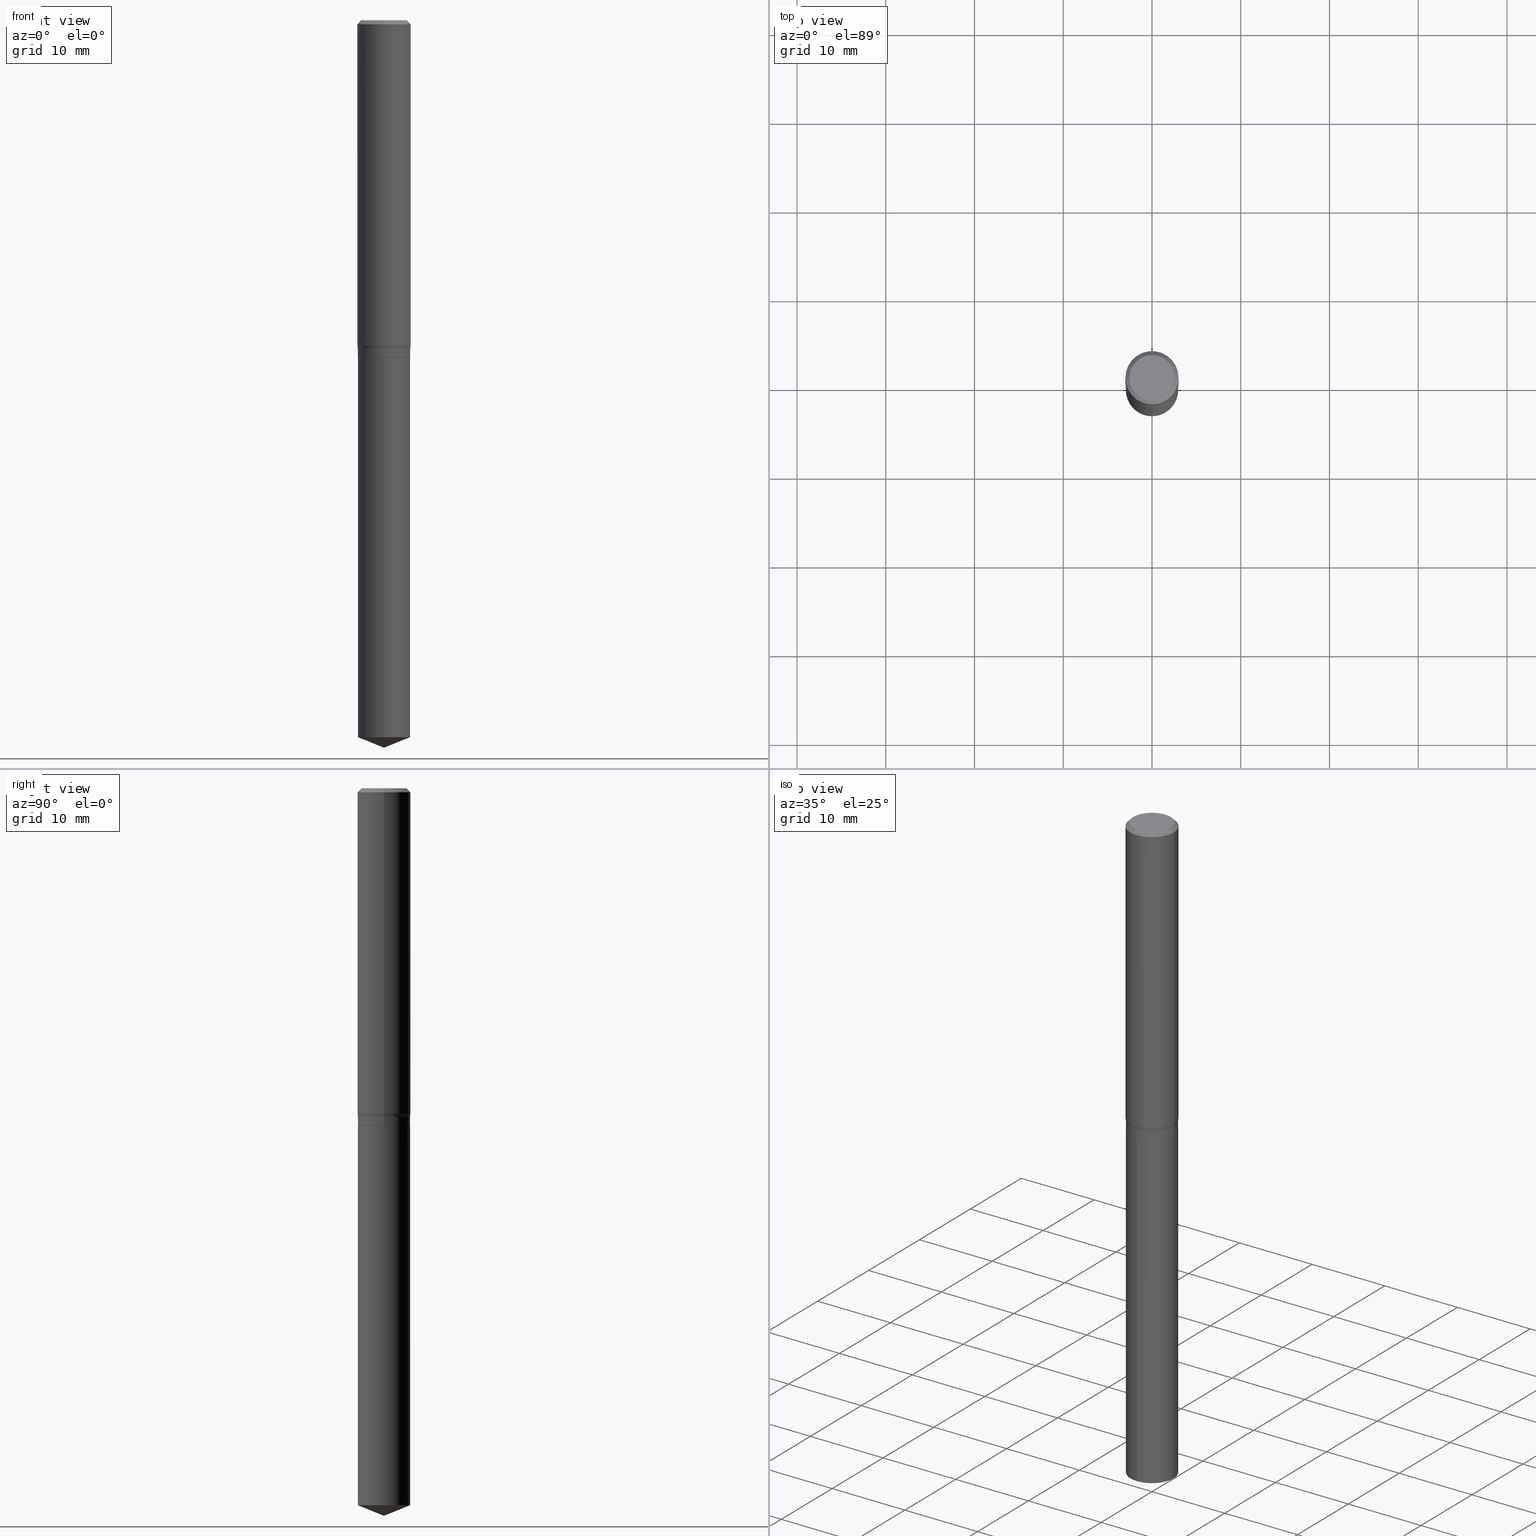
[diagram: canonical four-view strip — front | top / right | iso, engineering-drawing reading convention]
A machine part, canonical four-view strip (front | top / right | iso — engineering-drawing reading convention). The complete STEP part file that produces these views, byte-faithful:
ISO-10303-21;
HEADER;
FILE_DESCRIPTION (( 'STEP AP203' ),
    '1' );
FILE_NAME ('69252.STEP',
    '2024-04-19T17:31:47',
    ( '' ),
    ( '' ),
    'SwSTEP 2.0',
    'SolidWorks 2023',
    '' );
FILE_SCHEMA (( 'CONFIG_CONTROL_DESIGN' ));
ENDSEC;

DATA;
#1 = ADVANCED_FACE ( 'NONE', ( #8 ), #463, .T. ) ;
#2 = FACE_OUTER_BOUND ( 'NONE', #115, .T. ) ;
#3 = DIRECTION ( 'NONE',  ( -2.445468806185136877E-29, 3.491481338843145188E-15, 1.000000000000000000 ) ) ;
#4 = ORIENTED_EDGE ( 'NONE', *, *, #480, .T. ) ;
#5 = DIRECTION ( 'NONE',  ( 1.000000000000000000, -6.982962677686266711E-15, 4.875668750515085695E-29 ) ) ;
#6 = AXIS2_PLACEMENT_3D ( 'NONE', #385, #87, #178 ) ;
#7 = DATE_AND_TIME ( #415, #254 ) ;
#8 = FACE_OUTER_BOUND ( 'NONE', #291, .T. ) ;
#9 = CARTESIAN_POINT ( 'NONE',  ( 2.505516853152066359E-46, -3.577214035530481610E-32, -1.024554820251665005E-17 ) ) ;
#10 = EDGE_CURVE ( 'NONE', #384, #407, #182, .T. ) ;
#11 = EDGE_LOOP ( 'NONE', ( #313, #304 ) ) ;
#12 = CARTESIAN_POINT ( 'NONE',  ( 0.1161500000000000032, -6.031534012851531488E-15, -1.495200000000000307 ) ) ;
#13 = CC_DESIGN_PERSON_AND_ORGANIZATION_ASSIGNMENT ( #445, #216, ( #226 ) ) ;
#14 = APPROVAL_STATUS ( 'not_yet_approved' ) ;
#15 = VERTEX_POINT ( 'NONE', #93 ) ;
#16 = PLANE ( 'NONE',  #294 ) ;
#17 = VERTEX_POINT ( 'NONE', #460 ) ;
#18 = ORIENTED_EDGE ( 'NONE', *, *, #205, .T. ) ;
#19 = VECTOR ( 'NONE', #210, 39.37007874015748143 ) ;
#20 = DIRECTION ( 'NONE',  ( -2.445463019248761215E-29, 3.491489626065407071E-15, 1.000000000000000000 ) ) ;
#21 = EDGE_LOOP ( 'NONE', ( #443, #211, #58, #53 ) ) ;
#22 = APPROVAL_STATUS ( 'not_yet_approved' ) ;
#23 = APPROVAL_ROLE ( '' ) ;
#24 = ADVANCED_FACE ( 'NONE', ( #190 ), #477, .F. ) ;
#25 = CIRCLE ( 'NONE', #471, 0.1161500000000000032 ) ;
#26 = FACE_OUTER_BOUND ( 'NONE', #431, .T. ) ;
#27 = EDGE_CURVE ( 'NONE', #285, #310, #81, .T. ) ;
#28 = DIRECTION ( 'NONE',  ( 1.000000000000000000, -6.982962677686265922E-15, 4.876176775795935793E-29 ) ) ;
#29 = EDGE_LOOP ( 'NONE', ( #163, #321, #436, #209 ) ) ;
#30 = ADVANCED_FACE ( 'NONE', ( #303 ), #486, .T. ) ;
#31 = PERSON_AND_ORGANIZATION ( #136, #146 ) ;
#32 = CIRCLE ( 'NONE', #99, 0.07799999999999995826 ) ;
#33 = DIRECTION ( 'NONE',  ( 1.000000000000000000, -6.982962677686265922E-15, 4.876176775795935793E-29 ) ) ;
#34 = VECTOR ( 'NONE', #38, 39.37007874015748143 ) ;
#35 = LOCAL_TIME ( 13, 31, 47.00000000000000000, #252 ) ;
#36 = DIRECTION ( 'NONE',  ( -2.445463019248761215E-29, 3.491489626065407071E-15, 1.000000000000000000 ) ) ;
#37 = FACE_OUTER_BOUND ( 'NONE', #107, .T. ) ;
#38 = DIRECTION ( 'NONE',  ( 0.7071067811866199593, -2.468850131083015945E-15, 0.7071067811864750752 ) ) ;
#39 = ORIENTED_EDGE ( 'NONE', *, *, #52, .T. ) ;
#40 = DIRECTION ( 'NONE',  ( 1.000000000000000000, -6.982962677686261977E-15, 0.000000000000000000 ) ) ;
#41 = LINE ( 'NONE', #328, #265 ) ;
#42 = FACE_OUTER_BOUND ( 'NONE', #275, .T. ) ;
#43 =( CONVERSION_BASED_UNIT ( 'INCH', #481 ) LENGTH_UNIT ( ) NAMED_UNIT ( #225 ) );
#44 = DIRECTION ( 'NONE',  ( 6.588037525764792868E-15, 0.9271838545667893117, 0.3746065934159070188 ) ) ;
#45 = DIRECTION ( 'NONE',  ( -2.445468806185136877E-29, 3.491481338843145188E-15, 1.000000000000000000 ) ) ;
#46 = CYLINDRICAL_SURFACE ( 'NONE', #379, 0.1181000000000001077 ) ;
#47 = CYLINDRICAL_SURFACE ( 'NONE', #478, 0.1161500000000000032 ) ;
#48 = VERTEX_POINT ( 'NONE', #256 ) ;
#49 = CARTESIAN_POINT ( 'NONE',  ( 3.572585378955866653E-29, -5.100705087915951864E-15, -1.460900000000000309 ) ) ;
#50 = EDGE_CURVE ( 'NONE', #227, #243, #133, .T. ) ;
#51 = DIRECTION ( 'NONE',  ( -2.445468806185136597E-29, 3.491481338843145583E-15, 1.000000000000000000 ) ) ;
#52 = EDGE_CURVE ( 'NONE', #310, #102, #487, .T. ) ;
#53 = ORIENTED_EDGE ( 'NONE', *, *, #398, .T. ) ;
#54 = CIRCLE ( 'NONE', #293, 0.1161500000000000032 ) ;
#55 = PERSON_AND_ORGANIZATION ( #136, #146 ) ;
#56 = DIRECTION ( 'NONE',  ( -2.445468806185136597E-29, 3.491481338843145583E-15, 1.000000000000000000 ) ) ;
#57 = ORIENTED_EDGE ( 'NONE', *, *, #331, .T. ) ;
#58 = ORIENTED_EDGE ( 'NONE', *, *, #231, .T. ) ;
#59 = AXIS2_PLACEMENT_3D ( 'NONE', #258, #264, #295 ) ;
#60 = AXIS2_PLACEMENT_3D ( 'NONE', #402, #68, #28 ) ;
#61 = CC_DESIGN_PERSON_AND_ORGANIZATION_ASSIGNMENT ( #31, #289, ( #440 ) ) ;
#62 = ORIENTED_EDGE ( 'NONE', *, *, #287, .T. ) ;
#63 = VERTEX_POINT ( 'NONE', #424 ) ;
#64 = CARTESIAN_POINT ( 'NONE',  ( -0.1180999999999999966, 7.628363003171413738E-16, -0.01771500000000010913 ) ) ;
#65 = ORIENTED_EDGE ( 'NONE', *, *, #110, .T. ) ;
#66 = CLOSED_SHELL ( 'NONE', ( #235, #140, #447, #1, #273 ) ) ;
#67 = AXIS2_PLACEMENT_3D ( 'NONE', #114, #290, #476 ) ;
#68 = DIRECTION ( 'NONE',  ( -2.438088387897960049E-29, 3.491481338843145188E-15, 1.000000000000000000 ) ) ;
#69 = EDGE_CURVE ( 'NONE', #63, #399, #54, .T. ) ;
#70 = DIRECTION ( 'NONE',  ( 1.000000000000000000, -6.982962677686269866E-15, 0.000000000000000000 ) ) ;
#71 = ADVANCED_BREP_SHAPE_REPRESENTATION ( '69252', ( #400, #241, #234 ), #389 ) ;
#72 = DATE_AND_TIME ( #444, #35 ) ;
#73 = CYLINDRICAL_SURFACE ( 'NONE', #433, 0.1161500000000000032 ) ;
#74 = ORIENTED_EDGE ( 'NONE', *, *, #398, .F. ) ;
#75 = CALENDAR_DATE ( 2024, 19, 4 ) ;
#76 = CIRCLE ( 'NONE', #166, 0.1161500000000000032 ) ;
#77 = CONICAL_SURFACE ( 'NONE', #195, 97.44436430772871915, 1.186823891356145966 ) ;
#78 = ORIENTED_EDGE ( 'NONE', *, *, #27, .F. ) ;
#79 = ORIENTED_EDGE ( 'NONE', *, *, #269, .F. ) ;
#80 = DIRECTION ( 'NONE',  ( -6.982962677686265922E-15, -1.000000000000000000, 4.703999989090422785E-15 ) ) ;
#81 = LINE ( 'NONE', #383, #451 ) ;
#82 = FACE_OUTER_BOUND ( 'NONE', #98, .T. ) ;
#83 = APPROVAL_DATE_TIME ( #7, #103 ) ;
#84 = DIRECTION ( 'NONE',  ( -2.445468806185136597E-29, 3.491481338843145583E-15, 1.000000000000000000 ) ) ;
#85 = ORIENTED_EDGE ( 'NONE', *, *, #50, .T. ) ;
#86 = EDGE_CURVE ( 'NONE', #310, #227, #462, .T. ) ;
#88 = DIRECTION ( 'NONE',  ( 7.105427357601001859E-15, 1.000000000000000000, -3.491481338843145583E-15 ) ) ;
#87 = DIRECTION ( 'NONE',  ( -2.445468806185136597E-29, 3.491481338843145583E-15, 1.000000000000000000 ) ) ;
#89 = ORIENTED_EDGE ( 'NONE', *, *, #10, .T. ) ;
#90 = CIRCLE ( 'NONE', #129, 0.1180999999999999966 ) ;
#91 = LINE ( 'NONE', #232, #34 ) ;
#92 = APPROVAL_PERSON_ORGANIZATION ( #55, #116, #161 ) ;
#93 = CARTESIAN_POINT ( 'NONE',  ( -0.1003850000000000159, 7.319105043583386689E-16, -2.049109640503831060E-17 ) ) ;
#94 = ORIENTED_EDGE ( 'NONE', *, *, #261, .T. ) ;
#95 = EDGE_CURVE ( 'NONE', #384, #153, #127, .T. ) ;
#96 = DIRECTION ( 'NONE',  ( 1.000000000000000000, -6.982962677686269866E-15, 0.000000000000000000 ) ) ;
#97 = COORDINATED_UNIVERSAL_TIME_OFFSET ( 5, 0, .BEHIND. ) ;
#98 = EDGE_LOOP ( 'NONE', ( #299, #199, #378 ) ) ;
#99 = AXIS2_PLACEMENT_3D ( 'NONE', #458, #414, #40 ) ;
#100 = ORIENTED_EDGE ( 'NONE', *, *, #122, .T. ) ;
#101 = FACE_OUTER_BOUND ( 'NONE', #167, .T. ) ;
#102 = VERTEX_POINT ( 'NONE', #12 ) ;
#103 = APPROVAL ( #453, 'UNSPECIFIED' ) ;
#104 = COORDINATED_UNIVERSAL_TIME_OFFSET ( 5, 0, .BEHIND. ) ;
#105 = EDGE_LOOP ( 'NONE', ( #390, #197, #85, #388 ) ) ;
#106 = CIRCLE ( 'NONE', #359, 0.1156500000000000028 ) ;
#107 = EDGE_LOOP ( 'NONE', ( #316, #132 ) ) ;
#108 = AXIS2_PLACEMENT_3D ( 'NONE', #244, #118, #372 ) ;
#109 = EDGE_CURVE ( 'NONE', #102, #243, #160, .T. ) ;
#110 = EDGE_CURVE ( 'NONE', #153, #243, #32, .T. ) ;
#111 = AXIS2_PLACEMENT_3D ( 'NONE', #403, #145, #449 ) ;
#112 = CARTESIAN_POINT ( 'NONE',  ( 0.000000000000000000, 0.000000000000000000, 0.000000000000000000 ) ) ;
#113 = ORIENTED_EDGE ( 'NONE', *, *, #288, .T. ) ;
#114 = CARTESIAN_POINT ( 'NONE',  ( 4.332147990156995868E-31, -6.185159191760670395E-17, -0.01771500000000010913 ) ) ;
#115 = EDGE_LOOP ( 'NONE', ( #343, #192, #113, #74 ) ) ;
#116 = APPROVAL ( #14, 'UNSPECIFIED' ) ;
#117 = CARTESIAN_POINT ( 'NONE',  ( 0.000000000000000000, 0.000000000000000000, 0.000000000000000000 ) ) ;
#118 = DIRECTION ( 'NONE',  ( -2.445463019248761215E-29, 3.491489626065407071E-15, 1.000000000000000000 ) ) ;
#119 = CARTESIAN_POINT ( 'NONE',  ( 4.332147990156995868E-31, -6.185159191760670395E-17, -0.01771500000000010913 ) ) ;
#120 = MECHANICAL_CONTEXT ( 'NONE', #355, 'mechanical' ) ;
#121 = CARTESIAN_POINT ( 'NONE',  ( 7.893954626135001051E-29, -1.127052851293913482E-14, -3.228000000000000203 ) ) ;
#122 = EDGE_CURVE ( 'NONE', #285, #365, #106, .T. ) ;
#123 = FACE_OUTER_BOUND ( 'NONE', #419, .T. ) ;
#124 = CARTESIAN_POINT ( 'NONE',  ( -0.1941499999999999615, -3.721186366437717824E-15, -1.460900000000000309 ) ) ;
#125 = EDGE_CURVE ( 'NONE', #48, #352, #148, .T. ) ;
#126 = DIRECTION ( 'NONE',  ( 1.000000000000000000, -6.982962677686266711E-15, 4.876176775795935793E-29 ) ) ;
#127 = CIRCLE ( 'NONE', #395, 0.1181000000000001909 ) ;
#128 = AXIS2_PLACEMENT_3D ( 'NONE', #219, #377, #126 ) ;
#129 = AXIS2_PLACEMENT_3D ( 'NONE', #349, #155, #200 ) ;
#130 = CC_DESIGN_APPROVAL ( #116, ( #226 ) ) ;
#131 = CARTESIAN_POINT ( 'NONE',  ( 7.779203458462590144E-29, -1.110666872809960382E-14, -3.181072353869246694 ) ) ;
#132 = ORIENTED_EDGE ( 'NONE', *, *, #269, .T. ) ;
#133 = CIRCLE ( 'NONE', #263, 0.1161500000000000032 ) ;
#134 = CIRCLE ( 'NONE', #108, 0.1161500000000000032 ) ;
#135 = EDGE_CURVE ( 'NONE', #384, #227, #438, .T. ) ;
#136 = PERSON ( 'UNSPECIFIED', 'UNSPECIFIED', 'UNSPECIFIED', ('UNSPECIFIED'), ('UNSPECIFIED'), ('UNSPECIFIED') ) ;
#137 = EDGE_LOOP ( 'NONE', ( #435, #57, #324 ) ) ;
#138 = AXIS2_PLACEMENT_3D ( 'NONE', #124, #88, #350 ) ;
#139 = CALENDAR_DATE ( 2024, 19, 4 ) ;
#140 = ADVANCED_FACE ( 'NONE', ( #82 ), #410, .T. ) ;
#141 = FACE_OUTER_BOUND ( 'NONE', #29, .T. ) ;
#142 = CIRCLE ( 'NONE', #370, 0.1156500000000000028 ) ;
#143 = APPLICATION_PROTOCOL_DEFINITION ( 'international standard', 'config_control_design', 1994, #355 ) ;
#144 = DIRECTION ( 'NONE',  ( -6.982962677686265922E-15, -1.000000000000000000, 2.351999994545211393E-15 ) ) ;
#145 = DIRECTION ( 'NONE',  ( 2.445463019248760935E-29, -3.491489626065407071E-15, -1.000000000000000000 ) ) ;
#146 = ORGANIZATION ( 'UNSPECIFIED', 'UNSPECIFIED', '' ) ;
#147 = DIRECTION ( 'NONE',  ( -2.445468806185136597E-29, 3.491481338843145583E-15, 1.000000000000000000 ) ) ;
#148 = LINE ( 'NONE', #418, #369 ) ;
#149 = DIRECTION ( 'NONE',  ( -2.445468806185136597E-29, 3.491481338843145583E-15, 1.000000000000000000 ) ) ;
#150 = EDGE_CURVE ( 'NONE', #243, #227, #76, .T. ) ;
#151 = DIRECTION ( 'NONE',  ( 1.000000000000000000, -6.982962677686265922E-15, 0.000000000000000000 ) ) ;
#152 = DIRECTION ( 'NONE',  ( 1.000000000000000000, -6.982962677686267499E-15, 4.883557194083113462E-29 ) ) ;
#153 = VERTEX_POINT ( 'NONE', #336 ) ;
#154 = DIRECTION ( 'NONE',  ( 1.000000000000000000, -6.982962677686269866E-15, 0.000000000000000000 ) ) ;
#155 = DIRECTION ( 'NONE',  ( -2.445468806185136597E-29, 3.491481338843145583E-15, 1.000000000000000000 ) ) ;
#156 = DIRECTION ( 'NONE',  ( 1.000000000000000000, -6.982962677686265922E-15, 0.000000000000000000 ) ) ;
#157 = CIRCLE ( 'NONE', #322, 0.1180999999999999966 ) ;
#158 = DIRECTION ( 'NONE',  ( 0.000000000000000000, 0.000000000000000000, 1.000000000000000000 ) ) ;
#159 = CARTESIAN_POINT ( 'NONE',  ( 3.657687693411109493E-29, -5.222208638507693246E-15, -1.495700000000000029 ) ) ;
#160 = LINE ( 'NONE', #450, #176 ) ;
#161 = APPROVAL_ROLE ( '' ) ;
#162 = ORIENTED_EDGE ( 'NONE', *, *, #446, .F. ) ;
#163 = ORIENTED_EDGE ( 'NONE', *, *, #308, .T. ) ;
#164 = CARTESIAN_POINT ( 'NONE',  ( 3.572585378955866653E-29, -5.100705087915951864E-15, -1.460900000000000309 ) ) ;
#165 = APPROVAL ( #22, 'UNSPECIFIED' ) ;
#166 = AXIS2_PLACEMENT_3D ( 'NONE', #298, #456, #341 ) ;
#167 = EDGE_LOOP ( 'NONE', ( #354, #203, #65, #236 ) ) ;
#168 = LOCAL_TIME ( 13, 31, 47.00000000000000000, #97 ) ;
#169 = DIRECTION ( 'NONE',  ( 1.000000000000000000, -6.982962677686269077E-15, 0.000000000000000000 ) ) ;
#170 = CONICAL_SURFACE ( 'NONE', #240, 0.1156500000000000028, 0.7853981633975507526 ) ;
#171 = CARTESIAN_POINT ( 'NONE',  ( 0.1161500000000000032, -5.911776202929211610E-15, -1.460900000000000309 ) ) ;
#172 = PLANE ( 'NONE',  #60 ) ;
#173 = EDGE_LOOP ( 'NONE', ( #78, #100, #490, #218 ) ) ;
#174 = DESIGN_CONTEXT ( 'detailed design', #320, 'design' ) ;
#175 = FACE_OUTER_BOUND ( 'NONE', #11, .T. ) ;
#176 = VECTOR ( 'NONE', #381, 39.37007874015748143 ) ;
#177 = APPLICATION_PROTOCOL_DEFINITION ( 'international standard', 'config_control_design', 1994, #320 ) ;
#178 = DIRECTION ( 'NONE',  ( 1.000000000000000000, -6.982962677686266711E-15, 4.875668750515085695E-29 ) ) ;
#179 = CARTESIAN_POINT ( 'NONE',  ( -0.1161500000000000032, -4.335288605291756006E-15, -1.460900000000000309 ) ) ;
#180 = ADVANCED_FACE ( 'NONE', ( #42 ), #345, .T. ) ;
#181 = DATE_AND_TIME ( #75, #168 ) ;
#182 = LINE ( 'NONE', #386, #284 ) ;
#183 = DIRECTION ( 'NONE',  ( -2.445468806185136597E-29, 3.491481338843145583E-15, 1.000000000000000000 ) ) ;
#184 = UNCERTAINTY_MEASURE_WITH_UNIT (LENGTH_MEASURE( 1.000000000000000082E-05 ), #43, 'distance_accuracy_value', 'NONE');
#185 = CARTESIAN_POINT ( 'NONE',  ( 3.657687693411109493E-29, -5.222208638507693246E-15, -1.495700000000000029 ) ) ;
#186 = TOROIDAL_SURFACE ( 'NONE', #286, 0.1941499999999999615, 0.07799999999999997213 ) ;
#187 = ORIENTED_EDGE ( 'NONE', *, *, #468, .F. ) ;
#188 = CARTESIAN_POINT ( 'NONE',  ( 0.000000000000000000, 0.000000000000000000, 0.000000000000000000 ) ) ;
#189 = CARTESIAN_POINT ( 'NONE',  ( -0.1180999999999999966, -1.711870228163632299E-15, -0.01771500000000010913 ) ) ;
#190 = FACE_OUTER_BOUND ( 'NONE', #105, .T. ) ;
#191 = ADVANCED_FACE ( 'NONE', ( #2 ), #46, .T. ) ;
#192 = ORIENTED_EDGE ( 'NONE', *, *, #95, .T. ) ;
#193 = FACE_OUTER_BOUND ( 'NONE', #425, .T. ) ;
#194 = CARTESIAN_POINT ( 'NONE',  ( 3.530200564683698665E-29, -5.040190806275017950E-15, -1.443568020886233816 ) ) ;
#195 = AXIS2_PLACEMENT_3D ( 'NONE', #279, #20, #206 ) ;
#196 = ORIENTED_EDGE ( 'NONE', *, *, #228, .T. ) ;
#197 = ORIENTED_EDGE ( 'NONE', *, *, #135, .T. ) ;
#198 = FACE_OUTER_BOUND ( 'NONE', #137, .T. ) ;
#199 = ORIENTED_EDGE ( 'NONE', *, *, #340, .T. ) ;
#200 = DIRECTION ( 'NONE',  ( 1.000000000000000000, -6.982962677686266711E-15, 0.000000000000000000 ) ) ;
#201 = ADVANCED_FACE ( 'NONE', ( #193 ), #170, .T. ) ;
#202 = CIRCLE ( 'NONE', #317, 0.1003850000000000159 ) ;
#203 = ORIENTED_EDGE ( 'NONE', *, *, #228, .F. ) ;
#204 = APPROVAL_PERSON_ORGANIZATION ( #233, #103, #387 ) ;
#205 = EDGE_CURVE ( 'NONE', #15, #48, #202, .T. ) ;
#206 = DIRECTION ( 'NONE',  ( -6.982962677686265922E-15, -1.000000000000000000, 3.498761904101816908E-15 ) ) ;
#207 = ORIENTED_EDGE ( 'NONE', *, *, #287, .F. ) ;
#208 = DIRECTION ( 'NONE',  ( -0.7071067811865454633, 2.468850131082235367E-15, -0.7071067811865495711 ) ) ;
#209 = ORIENTED_EDGE ( 'NONE', *, *, #109, .F. ) ;
#210 = DIRECTION ( 'NONE',  ( -2.445463019248761495E-29, 3.491489626065407071E-15, 1.000000000000000000 ) ) ;
#211 = ORIENTED_EDGE ( 'NONE', *, *, #205, .F. ) ;
#212 = CARTESIAN_POINT ( 'NONE',  ( 7.893954626135001051E-29, -1.127052851293913482E-14, -3.228000000000000203 ) ) ;
#213 = DIRECTION ( 'NONE',  ( -6.982962677686265922E-15, -1.000000000000000000, 2.351999994545211393E-15 ) ) ;
#214 = CARTESIAN_POINT ( 'NONE',  ( 3.657687693411109493E-29, -5.222208638507693246E-15, -1.495700000000000029 ) ) ;
#215 = VECTOR ( 'NONE', #44, 39.37007874015748854 ) ;
#216 = PERSON_AND_ORGANIZATION_ROLE ( 'creator' ) ;
#217 = ADVANCED_FACE ( 'NONE', ( #428 ), #353, .T. ) ;
#218 = ORIENTED_EDGE ( 'NONE', *, *, #52, .F. ) ;
#219 = CARTESIAN_POINT ( 'NONE',  ( 0.000000000000000000, 0.000000000000000000, 0.000000000000000000 ) ) ;
#220 = LINE ( 'NONE', #376, #215 ) ;
#221 = CARTESIAN_POINT ( 'NONE',  ( -8.838410834231123198E-28, 1.261897053808972717E-13, 36.14207874015747990 ) ) ;
#222 = EDGE_CURVE ( 'NONE', #365, #102, #91, .T. ) ;
#223 = DIRECTION ( 'NONE',  ( 1.000000000000000000, -6.982962677686269866E-15, 0.000000000000000000 ) ) ;
#224 = CIRCLE ( 'NONE', #6, 0.1003850000000000159 ) ;
#225 = DIMENSIONAL_EXPONENTS ( 1.000000000000000000, 0.000000000000000000, 0.000000000000000000, 0.000000000000000000, 0.000000000000000000, 0.000000000000000000, 0.000000000000000000 ) ;
#226 = PRODUCT_DEFINITION_FORMATION_WITH_SPECIFIED_SOURCE ( 'ANY', '', #440, .NOT_KNOWN. ) ;
#227 = VERTEX_POINT ( 'NONE', #179 ) ;
#228 = EDGE_CURVE ( 'NONE', #153, #384, #247, .T. ) ;
#229 = EDGE_LOOP ( 'NONE', ( #196, #89, #351, #437 ) ) ;
#230 = DIRECTION ( 'NONE',  ( -2.445468806185136597E-29, 3.491481338843145583E-15, 1.000000000000000000 ) ) ;
#231 = EDGE_CURVE ( 'NONE', #15, #407, #470, .T. ) ;
#232 = CARTESIAN_POINT ( 'NONE',  ( 0.1156500000000000028, -6.029788272182109985E-15, -1.495700000000000029 ) ) ;
#233 = PERSON_AND_ORGANIZATION ( #136, #146 ) ;
#234 = AXIS2_PLACEMENT_3D ( 'NONE', #117, #158, #342 ) ;
#235 = ADVANCED_FACE ( 'NONE', ( #26 ), #73, .T. ) ;
#236 = ORIENTED_EDGE ( 'NONE', *, *, #150, .T. ) ;
#237 = DATE_AND_TIME ( #139, #412 ) ;
#238 = ORIENTED_EDGE ( 'NONE', *, *, #86, .F. ) ;
#239 = PERSON_AND_ORGANIZATION ( #136, #146 ) ;
#240 = AXIS2_PLACEMENT_3D ( 'NONE', #491, #149, #154 ) ;
#241 = MANIFOLD_SOLID_BREP ( 'Body-Move/Copy2[2]', #246 ) ;
#242 = ADVANCED_FACE ( 'NONE', ( #368 ), #330, .T. ) ;
#243 = VERTEX_POINT ( 'NONE', #171 ) ;
#244 = CARTESIAN_POINT ( 'NONE',  ( 3.657687693411109493E-29, -5.222208638507693246E-15, -1.495700000000000029 ) ) ;
#245 = ADVANCED_FACE ( 'NONE', ( #141 ), #283, .T. ) ;
#246 = CLOSED_SHELL ( 'NONE', ( #201, #180, #30, #24, #245, #296, #382, #191, #242, #434, #276, #217 ) ) ;
#247 = CIRCLE ( 'NONE', #441, 0.1181000000000001909 ) ;
#248 = ORIENTED_EDGE ( 'NONE', *, *, #125, .T. ) ;
#249 = PERSON_AND_ORGANIZATION_ROLE ( 'creator' ) ;
#250 = LINE ( 'NONE', #406, #19 ) ;
#251 = CC_DESIGN_DATE_AND_TIME_ASSIGNMENT ( #237, #274, ( #272 ) ) ;
#252 = COORDINATED_UNIVERSAL_TIME_OFFSET ( 5, 0, .BEHIND. ) ;
#253 = CIRCLE ( 'NONE', #467, 0.1161500000000000032 ) ;
#254 = LOCAL_TIME ( 13, 31, 47.00000000000000000, #268 ) ;
#255 = PERSON_AND_ORGANIZATION ( #136, #146 ) ;
#256 = CARTESIAN_POINT ( 'NONE',  ( 0.1003850000000000159, -7.803837484803599345E-16, -2.049109640502812012E-17 ) ) ;
#257 = DIRECTION ( 'NONE',  ( 2.445468806185136597E-29, -3.491481338843145583E-15, -1.000000000000000000 ) ) ;
#258 = CARTESIAN_POINT ( 'NONE',  ( 3.656464959008016692E-29, -5.220462897838271742E-15, -1.495200000000000307 ) ) ;
#259 = DIRECTION ( 'NONE',  ( -2.445468806185136597E-29, 3.491481338843145583E-15, 1.000000000000000000 ) ) ;
#260 = DIRECTION ( 'NONE',  ( -1.000000000000000000, 6.982962677686266711E-15, 0.000000000000000000 ) ) ;
#261 = EDGE_CURVE ( 'NONE', #399, #465, #250, .T. ) ;
#262 = CARTESIAN_POINT ( 'NONE',  ( 8.252953875854338945E-16, 0.1161499999999888871, -3.181072353869247582 ) ) ;
#263 = AXIS2_PLACEMENT_3D ( 'NONE', #374, #339, #156 ) ;
#264 = DIRECTION ( 'NONE',  ( -2.445468806185136597E-29, 3.491481338843145583E-15, 1.000000000000000000 ) ) ;
#265 = VECTOR ( 'NONE', #363, 39.37007874015748143 ) ;
#266 = CARTESIAN_POINT ( 'NONE',  ( -0.1161500000000000032, 8.252953875853563889E-16, -5.713343107331073533E-30 ) ) ;
#267 = DIRECTION ( 'NONE',  ( 1.000000000000000000, -6.982962677686266711E-15, 4.876176775795935793E-29 ) ) ;
#268 = COORDINATED_UNIVERSAL_TIME_OFFSET ( 5, 0, .BEHIND. ) ;
#269 = EDGE_CURVE ( 'NONE', #465, #17, #134, .T. ) ;
#270 = DIRECTION ( 'NONE',  ( -2.445463019248761495E-29, 3.491489626065407071E-15, 1.000000000000000000 ) ) ;
#271 = VECTOR ( 'NONE', #208, 39.37007874015748143 ) ;
#272 = SECURITY_CLASSIFICATION ( '', '', #448 ) ;
#273 = ADVANCED_FACE ( 'NONE', ( #37 ), #484, .F. ) ;
#274 = DATE_TIME_ROLE ( 'classification_date' ) ;
#275 = EDGE_LOOP ( 'NONE', ( #207, #248, #393, #401 ) ) ;
#276 = ADVANCED_FACE ( 'NONE', ( #175 ), #172, .F. ) ;
#277 = ORIENTED_EDGE ( 'NONE', *, *, #222, .F. ) ;
#278 = CALENDAR_DATE ( 2024, 19, 4 ) ;
#279 = CARTESIAN_POINT ( 'NONE',  ( -8.838410834231123198E-28, 1.261897053808972717E-13, 36.14207874015747990 ) ) ;
#280 = EDGE_CURVE ( 'NONE', #365, #285, #142, .T. ) ;
#281 = CC_DESIGN_DATE_AND_TIME_ASSIGNMENT ( #181, #405, ( #367 ) ) ;
#282 = DIRECTION ( 'NONE',  ( -2.445468806185136597E-29, 3.491481338843145583E-15, 1.000000000000000000 ) ) ;
#283 = CYLINDRICAL_SURFACE ( 'NONE', #439, 0.1161500000000000032 ) ;
#284 = VECTOR ( 'NONE', #3, 39.37007874015748143 ) ;
#285 = VERTEX_POINT ( 'NONE', #364 ) ;
#286 = AXIS2_PLACEMENT_3D ( 'NONE', #164, #56, #469 ) ;
#287 = EDGE_CURVE ( 'NONE', #48, #15, #224, .T. ) ;
#288 = EDGE_CURVE ( 'NONE', #153, #352, #41, .T. ) ;
#289 = PERSON_AND_ORGANIZATION_ROLE ( 'design_owner' ) ;
#290 = DIRECTION ( 'NONE',  ( 2.445468806185136597E-29, -3.491481338843145583E-15, -1.000000000000000000 ) ) ;
#291 = EDGE_LOOP ( 'NONE', ( #348, #4, #335, #79 ) ) ;
#292 = DIRECTION ( 'NONE',  ( -2.445468806185136597E-29, 3.491481338843145583E-15, 1.000000000000000000 ) ) ;
#293 = AXIS2_PLACEMENT_3D ( 'NONE', #131, #454, #307 ) ;
#294 = AXIS2_PLACEMENT_3D ( 'NONE', #9, #464, #311 ) ;
#295 = DIRECTION ( 'NONE',  ( 1.000000000000000000, -6.982962677686265922E-15, 0.000000000000000000 ) ) ;
#296 = ADVANCED_FACE ( 'NONE', ( #123 ), #47, .T. ) ;
#297 = ORIENTED_EDGE ( 'NONE', *, *, #50, .F. ) ;
#298 = CARTESIAN_POINT ( 'NONE',  ( 3.572585378955866653E-29, -5.100705087915951864E-15, -1.460900000000000309 ) ) ;
#299 = ORIENTED_EDGE ( 'NONE', *, *, #331, .F. ) ;
#300 = DIRECTION ( 'NONE',  ( 1.000000000000000000, -6.982962677686266711E-15, 0.000000000000000000 ) ) ;
#301 = DIRECTION ( 'NONE',  ( 0.7071067811865454633, -7.319954787623248157E-15, -0.7071067811865495711 ) ) ;
#302 = CARTESIAN_POINT ( 'NONE',  ( 5.011033706304132718E-46, -7.154428071060963220E-32, -2.049109640503330010E-17 ) ) ;
#303 = FACE_OUTER_BOUND ( 'NONE', #229, .T. ) ;
#304 = ORIENTED_EDGE ( 'NONE', *, *, #122, .F. ) ;
#305 = DIRECTION ( 'NONE',  ( -2.445468806185136597E-29, 3.491481338843145583E-15, 1.000000000000000000 ) ) ;
#306 = FACE_OUTER_BOUND ( 'NONE', #391, .T. ) ;
#307 = DIRECTION ( 'NONE',  ( -6.982962677686265922E-15, -1.000000000000000000, 4.703999989090422785E-15 ) ) ;
#308 = EDGE_CURVE ( 'NONE', #102, #310, #411, .T. ) ;
#309 = DIRECTION ( 'NONE',  ( -2.445463019248761215E-29, 3.491489626065407071E-15, 1.000000000000000000 ) ) ;
#310 = VERTEX_POINT ( 'NONE', #333 ) ;
#311 = DIRECTION ( 'NONE',  ( -1.000000000000000000, 6.982962677686265922E-15, -4.876176775795935793E-29 ) ) ;
#312 = DATE_AND_TIME ( #278, #479 ) ;
#313 = ORIENTED_EDGE ( 'NONE', *, *, #280, .F. ) ;
#314 = AXIS2_PLACEMENT_3D ( 'NONE', #420, #305, #96 ) ;
#315 = SHAPE_DEFINITION_REPRESENTATION ( #360, #71 ) ;
#316 = ORIENTED_EDGE ( 'NONE', *, *, #468, .T. ) ;
#317 = AXIS2_PLACEMENT_3D ( 'NONE', #302, #459, #5 ) ;
#318 = APPROVAL_PERSON_ORGANIZATION ( #239, #165, #23 ) ;
#319 = DIRECTION ( 'NONE',  ( -2.445463019248761215E-29, 3.491489626065407071E-15, 1.000000000000000000 ) ) ;
#320 = APPLICATION_CONTEXT ( 'configuration controlled 3d designs of mechanical parts and assemblies' ) ;
#321 = ORIENTED_EDGE ( 'NONE', *, *, #86, .T. ) ;
#322 = AXIS2_PLACEMENT_3D ( 'NONE', #489, #147, #300 ) ;
#323 = APPROVAL_DATE_TIME ( #72, #116 ) ;
#324 = ORIENTED_EDGE ( 'NONE', *, *, #480, .F. ) ;
#325 = PERSON_AND_ORGANIZATION_ROLE ( 'design_supplier' ) ;
#326 = CARTESIAN_POINT ( 'NONE',  ( 3.530200564683698665E-29, -5.040190806275017950E-15, -1.443568020886233816 ) ) ;
#327 = DIRECTION ( 'NONE',  ( -0.7071067811866199593, 7.493145998870616062E-15, 0.7071067811864750752 ) ) ;
#328 = CARTESIAN_POINT ( 'NONE',  ( 0.1181000000000001077, -8.246878922347488542E-16, 5.758764772215005345E-30 ) ) ;
#329 = DIRECTION ( 'NONE',  ( -2.445463019248761215E-29, 3.491489626065407071E-15, 1.000000000000000000 ) ) ;
#330 = CONICAL_SURFACE ( 'NONE', #67, 0.1180999999999999966, 0.7853981633974453924 ) ;
#331 = EDGE_CURVE ( 'NONE', #475, #63, #416, .T. ) ;
#332 = CC_DESIGN_SECURITY_CLASSIFICATION ( #272, ( #226 ) ) ;
#333 = CARTESIAN_POINT ( 'NONE',  ( -0.1161500000000000032, -4.335288605291756006E-15, -1.495200000000000307 ) ) ;
#334 = DIRECTION ( 'NONE',  ( -2.445468806185136597E-29, 3.491481338843145583E-15, 1.000000000000000000 ) ) ;
#335 = ORIENTED_EDGE ( 'NONE', *, *, #446, .T. ) ;
#336 = CARTESIAN_POINT ( 'NONE',  ( 0.1181000000000002048, -5.864878698509767790E-15, -1.443568020886233816 ) ) ;
#337 = CARTESIAN_POINT ( 'NONE',  ( 3.656464959008016692E-29, -5.220462897838271742E-15, -1.495200000000000307 ) ) ;
#338 = DIRECTION ( 'NONE',  ( -6.982962677686265922E-15, -1.000000000000000000, 2.351999994545211393E-15 ) ) ;
#339 = DIRECTION ( 'NONE',  ( -2.445468806185136597E-29, 3.491481338843145583E-15, 1.000000000000000000 ) ) ;
#340 = EDGE_CURVE ( 'NONE', #475, #399, #220, .T. ) ;
#341 = DIRECTION ( 'NONE',  ( 1.000000000000000000, -6.982962677686265922E-15, 0.000000000000000000 ) ) ;
#342 = DIRECTION ( 'NONE',  ( 1.000000000000000000, 0.000000000000000000, 0.000000000000000000 ) ) ;
#343 = ORIENTED_EDGE ( 'NONE', *, *, #10, .F. ) ;
#344 = CARTESIAN_POINT ( 'NONE',  ( 0.1156500000000000028, -6.029788272182109985E-15, -1.495700000000000029 ) ) ;
#345 = CONICAL_SURFACE ( 'NONE', #423, 0.1180999999999999966, 0.7853981633974453924 ) ;
#346 = DIRECTION ( 'NONE',  ( 1.000000000000000000, -6.982962677686269077E-15, 0.000000000000000000 ) ) ;
#347 =( NAMED_UNIT ( * ) SI_UNIT ( $, .STERADIAN. ) SOLID_ANGLE_UNIT ( ) );
#348 = ORIENTED_EDGE ( 'NONE', *, *, #261, .F. ) ;
#349 = CARTESIAN_POINT ( 'NONE',  ( 4.332147990156995868E-31, -6.185159191760670395E-17, -0.01771500000000010913 ) ) ;
#350 = DIRECTION ( 'NONE',  ( -1.000000000000000000, 7.105427357601001859E-15, 0.000000000000000000 ) ) ;
#351 = ORIENTED_EDGE ( 'NONE', *, *, #356, .F. ) ;
#352 = VERTEX_POINT ( 'NONE', #457 ) ;
#353 = CONICAL_SURFACE ( 'NONE', #314, 0.1156500000000000028, 0.7853981633975507526 ) ;
#354 = ORIENTED_EDGE ( 'NONE', *, *, #135, .F. ) ;
#355 = APPLICATION_CONTEXT ( 'configuration controlled 3d designs of mechanical parts and assemblies' ) ;
#356 = EDGE_CURVE ( 'NONE', #352, #407, #157, .T. ) ;
#357 = CC_DESIGN_PERSON_AND_ORGANIZATION_ASSIGNMENT ( #483, #325, ( #226 ) ) ;
#358 = ORIENTED_EDGE ( 'NONE', *, *, #27, .T. ) ;
#359 = AXIS2_PLACEMENT_3D ( 'NONE', #185, #334, #223 ) ;
#360 = PRODUCT_DEFINITION_SHAPE ( 'NONE', 'NONE',  #367 ) ;
#361 = CC_DESIGN_APPROVAL ( #103, ( #367 ) ) ;
#362 = CARTESIAN_POINT ( 'NONE',  ( 3.657687693411109493E-29, -5.222208638507693246E-15, -1.495700000000000029 ) ) ;
#363 = DIRECTION ( 'NONE',  ( -2.445468806185136877E-29, 3.491481338843145188E-15, 1.000000000000000000 ) ) ;
#364 = CARTESIAN_POINT ( 'NONE',  ( -0.1156500000000000028, -4.397816737427025963E-15, -1.495700000000000029 ) ) ;
#365 = VERTEX_POINT ( 'NONE', #344 ) ;
#366 = CARTESIAN_POINT ( 'NONE',  ( 7.779203458462590144E-29, -1.110666872809960382E-14, -3.181072353869246694 ) ) ;
#367 = PRODUCT_DEFINITION ( 'UNKNOWN', '', #226, #174 ) ;
#368 = FACE_OUTER_BOUND ( 'NONE', #21, .T. ) ;
#369 = VECTOR ( 'NONE', #301, 39.37007874015748143 ) ;
#370 = AXIS2_PLACEMENT_3D ( 'NONE', #362, #474, #70 ) ;
#371 = CARTESIAN_POINT ( 'NONE',  ( 3.657687693411109493E-29, -5.222208638507693246E-15, -1.495700000000000029 ) ) ;
#372 = DIRECTION ( 'NONE',  ( -6.982962677686265922E-15, -1.000000000000000000, 2.351999994545211393E-15 ) ) ;
#373 = PERSON_AND_ORGANIZATION_ROLE ( 'classification_officer' ) ;
#374 = CARTESIAN_POINT ( 'NONE',  ( 3.572585378955866653E-29, -5.100705087915951864E-15, -1.460900000000000309 ) ) ;
#375 = DIRECTION ( 'NONE',  ( -2.445463019248761215E-29, 3.491489626065407071E-15, 1.000000000000000000 ) ) ;
#376 = CARTESIAN_POINT ( 'NONE',  ( 7.893972088973872941E-29, -1.127050372254246374E-14, -3.228000000000000203 ) ) ;
#377 = DIRECTION ( 'NONE',  ( -2.445468806185136597E-29, 3.491481338843145583E-15, 1.000000000000000000 ) ) ;
#378 = ORIENTED_EDGE ( 'NONE', *, *, #69, .F. ) ;
#379 = AXIS2_PLACEMENT_3D ( 'NONE', #188, #183, #267 ) ;
#380 = CARTESIAN_POINT ( 'NONE',  ( 0.000000000000000000, 0.000000000000000000, 0.000000000000000000 ) ) ;
#381 = DIRECTION ( 'NONE',  ( -2.445468806185136877E-29, 3.491481338843145188E-15, 1.000000000000000000 ) ) ;
#382 = ADVANCED_FACE ( 'NONE', ( #101 ), #186, .F. ) ;
#383 = CARTESIAN_POINT ( 'NONE',  ( -0.1156500000000000028, -4.400465964601137164E-15, -1.495700000000000029 ) ) ;
#384 = VERTEX_POINT ( 'NONE', #422 ) ;
#386 = CARTESIAN_POINT ( 'NONE',  ( -0.1181000000000001077, 8.391509709326790846E-16, -5.809262341591049389E-30 ) ) ;
#385 = CARTESIAN_POINT ( 'NONE',  ( 5.011033706304132718E-46, -7.154428071060963220E-32, -2.049109640503330010E-17 ) ) ;
#387 = APPROVAL_ROLE ( '' ) ;
#388 = ORIENTED_EDGE ( 'NONE', *, *, #110, .F. ) ;
#389 =( GEOMETRIC_REPRESENTATION_CONTEXT ( 3 ) GLOBAL_UNCERTAINTY_ASSIGNED_CONTEXT ( ( #184 ) ) GLOBAL_UNIT_ASSIGNED_CONTEXT ( ( #43, #409, #347 ) ) REPRESENTATION_CONTEXT ( 'NONE', 'WORKASPACE' ) );
#390 = ORIENTED_EDGE ( 'NONE', *, *, #95, .F. ) ;
#391 = EDGE_LOOP ( 'NONE', ( #18, #62 ) ) ;
#392 = COORDINATED_UNIVERSAL_TIME_OFFSET ( 5, 0, .BEHIND. ) ;
#393 = ORIENTED_EDGE ( 'NONE', *, *, #356, .T. ) ;
#394 = APPROVAL_DATE_TIME ( #312, #165 ) ;
#395 = AXIS2_PLACEMENT_3D ( 'NONE', #194, #230, #346 ) ;
#396 = VECTOR ( 'NONE', #45, 39.37007874015748143 ) ;
#397 = VECTOR ( 'NONE', #270, 39.37007874015748143 ) ;
#398 = EDGE_CURVE ( 'NONE', #407, #352, #90, .T. ) ;
#399 = VERTEX_POINT ( 'NONE', #262 ) ;
#400 = MANIFOLD_SOLID_BREP ( 'Body-Move/Copy2[1]', #66 ) ;
#401 = ORIENTED_EDGE ( 'NONE', *, *, #231, .F. ) ;
#402 = CARTESIAN_POINT ( 'NONE',  ( 3.657687693411109493E-29, -5.222208638507693246E-15, -1.495700000000000029 ) ) ;
#403 = CARTESIAN_POINT ( 'NONE',  ( 3.657687693411109493E-29, -5.222208638507693246E-15, -1.495700000000000029 ) ) ;
#404 = LINE ( 'NONE', #427, #397 ) ;
#405 = DATE_TIME_ROLE ( 'creation_date' ) ;
#406 = CARTESIAN_POINT ( 'NONE',  ( 8.252953875853927751E-16, 0.1161499999999947713, -1.495700000000000474 ) ) ;
#407 = VERTEX_POINT ( 'NONE', #189 ) ;
#408 = ORIENTED_EDGE ( 'NONE', *, *, #308, .F. ) ;
#409 =( NAMED_UNIT ( * ) PLANE_ANGLE_UNIT ( ) SI_UNIT ( $, .RADIAN. ) );
#410 = CONICAL_SURFACE ( 'NONE', #432, 97.44436430772871915, 1.186823891356145966 ) ;
#411 = CIRCLE ( 'NONE', #461, 0.1161500000000000032 ) ;
#412 = LOCAL_TIME ( 13, 31, 47.00000000000000000, #104 ) ;
#413 =( LENGTH_UNIT ( ) NAMED_UNIT ( * ) SI_UNIT ( $, .METRE. ) );
#414 = DIRECTION ( 'NONE',  ( -6.982962677686266711E-15, -1.000000000000000000, 3.491481338843145583E-15 ) ) ;
#415 = CALENDAR_DATE ( 2024, 19, 4 ) ;
#416 = LINE ( 'NONE', #121, #452 ) ;
#417 = DIRECTION ( 'NONE',  ( 1.000000000000000000, -6.982962677686265922E-15, 4.876176775795935793E-29 ) ) ;
#418 = CARTESIAN_POINT ( 'NONE',  ( 0.1180999999999999966, -8.720764054544245267E-16, -0.01771500000000010913 ) ) ;
#419 = EDGE_LOOP ( 'NONE', ( #238, #39, #430, #297 ) ) ;
#420 = CARTESIAN_POINT ( 'NONE',  ( 3.657687693411109493E-29, -5.222208638507693246E-15, -1.495700000000000029 ) ) ;
#421 = AXIS2_PLACEMENT_3D ( 'NONE', #159, #309, #338 ) ;
#422 = CARTESIAN_POINT ( 'NONE',  ( -0.1181000000000002048, -4.201039835342338175E-15, -1.443568020886233816 ) ) ;
#423 = AXIS2_PLACEMENT_3D ( 'NONE', #119, #257, #260 ) ;
#424 = CARTESIAN_POINT ( 'NONE',  ( -8.110711150131820431E-16, -0.1161500000000111055, -3.181072353869246250 ) ) ;
#425 = EDGE_LOOP ( 'NONE', ( #455, #358, #408, #277 ) ) ;
#426 = CC_DESIGN_PERSON_AND_ORGANIZATION_ASSIGNMENT ( #429, #249, ( #367 ) ) ;
#427 = CARTESIAN_POINT ( 'NONE',  ( -8.110711150132233597E-16, -0.1161500000000052213, -1.495699999999999807 ) ) ;
#428 = FACE_OUTER_BOUND ( 'NONE', #173, .T. ) ;
#429 = PERSON_AND_ORGANIZATION ( #136, #146 ) ;
#430 = ORIENTED_EDGE ( 'NONE', *, *, #109, .T. ) ;
#431 = EDGE_LOOP ( 'NONE', ( #472, #94, #187, #162 ) ) ;
#432 = AXIS2_PLACEMENT_3D ( 'NONE', #221, #329, #488 ) ;
#433 = AXIS2_PLACEMENT_3D ( 'NONE', #214, #319, #213 ) ;
#434 = ADVANCED_FACE ( 'NONE', ( #306 ), #16, .F. ) ;
#435 = ORIENTED_EDGE ( 'NONE', *, *, #340, .F. ) ;
#436 = ORIENTED_EDGE ( 'NONE', *, *, #150, .F. ) ;
#437 = ORIENTED_EDGE ( 'NONE', *, *, #288, .F. ) ;
#438 = CIRCLE ( 'NONE', #138, 0.07799999999999995826 ) ;
#439 = AXIS2_PLACEMENT_3D ( 'NONE', #112, #282, #33 ) ;
#440 = PRODUCT ( '69252', '69252', '', ( #120 ) ) ;
#441 = AXIS2_PLACEMENT_3D ( 'NONE', #326, #292, #169 ) ;
#442 = CC_DESIGN_APPROVAL ( #165, ( #272 ) ) ;
#443 = ORIENTED_EDGE ( 'NONE', *, *, #125, .F. ) ;
#444 = CALENDAR_DATE ( 2024, 19, 4 ) ;
#445 = PERSON_AND_ORGANIZATION ( #136, #146 ) ;
#446 = EDGE_CURVE ( 'NONE', #63, #17, #404, .T. ) ;
#447 = ADVANCED_FACE ( 'NONE', ( #198 ), #77, .T. ) ;
#448 = SECURITY_CLASSIFICATION_LEVEL ( 'unclassified' ) ;
#450 = CARTESIAN_POINT ( 'NONE',  ( 0.1161500000000000032, -8.110711150132598445E-16, 5.663679325086979799E-30 ) ) ;
#449 = DIRECTION ( 'NONE',  ( 6.982962677686265922E-15, 1.000000000000000000, -3.491489626065407071E-15 ) ) ;
#451 = VECTOR ( 'NONE', #327, 39.37007874015748143 ) ;
#452 = VECTOR ( 'NONE', #492, 39.37007874015748143 ) ;
#453 = APPROVAL_STATUS ( 'not_yet_approved' ) ;
#454 = DIRECTION ( 'NONE',  ( -2.445463019248761215E-29, 3.491489626065407071E-15, 1.000000000000000000 ) ) ;
#455 = ORIENTED_EDGE ( 'NONE', *, *, #280, .T. ) ;
#456 = DIRECTION ( 'NONE',  ( -2.445468806185136597E-29, 3.491481338843145583E-15, 1.000000000000000000 ) ) ;
#457 = CARTESIAN_POINT ( 'NONE',  ( 0.1180999999999999966, -8.865394841523547570E-16, -0.01771500000000010913 ) ) ;
#458 = CARTESIAN_POINT ( 'NONE',  ( 0.1941499999999999615, -6.456447291788740445E-15, -1.460900000000000309 ) ) ;
#459 = DIRECTION ( 'NONE',  ( -2.445468806185136597E-29, 3.491481338843145583E-15, 1.000000000000000000 ) ) ;
#460 = CARTESIAN_POINT ( 'NONE',  ( -8.110711150132233597E-16, -0.1161500000000052213, -1.495699999999999807 ) ) ;
#461 = AXIS2_PLACEMENT_3D ( 'NONE', #337, #84, #151 ) ;
#462 = LINE ( 'NONE', #266, #396 ) ;
#463 = CYLINDRICAL_SURFACE ( 'NONE', #421, 0.1161500000000000032 ) ;
#464 = DIRECTION ( 'NONE',  ( 2.438088387897960049E-29, -3.491481338843145188E-15, -1.000000000000000000 ) ) ;
#465 = VERTEX_POINT ( 'NONE', #485 ) ;
#466 = AXIS2_PLACEMENT_3D ( 'NONE', #49, #51, #152 ) ;
#467 = AXIS2_PLACEMENT_3D ( 'NONE', #366, #36, #80 ) ;
#468 = EDGE_CURVE ( 'NONE', #17, #465, #25, .T. ) ;
#469 = DIRECTION ( 'NONE',  ( 1.000000000000000000, -6.982962677686267499E-15, 4.883557194083113462E-29 ) ) ;
#470 = LINE ( 'NONE', #64, #271 ) ;
#471 = AXIS2_PLACEMENT_3D ( 'NONE', #371, #375, #144 ) ;
#472 = ORIENTED_EDGE ( 'NONE', *, *, #69, .T. ) ;
#473 = PRODUCT_RELATED_PRODUCT_CATEGORY ( 'detail', '', ( #440 ) ) ;
#474 = DIRECTION ( 'NONE',  ( -2.445468806185136597E-29, 3.491481338843145583E-15, 1.000000000000000000 ) ) ;
#475 = VERTEX_POINT ( 'NONE', #212 ) ;
#476 = DIRECTION ( 'NONE',  ( -1.000000000000000000, 6.982962677686266711E-15, 0.000000000000000000 ) ) ;
#477 = TOROIDAL_SURFACE ( 'NONE', #466, 0.1941499999999999615, 0.07799999999999997213 ) ;
#478 = AXIS2_PLACEMENT_3D ( 'NONE', #380, #259, #417 ) ;
#479 = LOCAL_TIME ( 13, 31, 47.00000000000000000, #392 ) ;
#480 = EDGE_CURVE ( 'NONE', #399, #63, #253, .T. ) ;
#481 = LENGTH_MEASURE_WITH_UNIT ( LENGTH_MEASURE( 0.02539999999999999897 ), #413 );
#482 = CC_DESIGN_PERSON_AND_ORGANIZATION_ASSIGNMENT ( #255, #373, ( #272 ) ) ;
#483 = PERSON_AND_ORGANIZATION ( #136, #146 ) ;
#484 = PLANE ( 'NONE',  #111 ) ;
#485 = CARTESIAN_POINT ( 'NONE',  ( 8.252953875854342889E-16, 0.1161499999999947713, -1.495700000000000474 ) ) ;
#486 = CYLINDRICAL_SURFACE ( 'NONE', #128, 0.1181000000000001077 ) ;
#487 = CIRCLE ( 'NONE', #59, 0.1161500000000000032 ) ;
#488 = DIRECTION ( 'NONE',  ( -6.982962677686265922E-15, -1.000000000000000000, 3.498761904101816908E-15 ) ) ;
#489 = CARTESIAN_POINT ( 'NONE',  ( 4.332147990156995868E-31, -6.185159191760670395E-17, -0.01771500000000010913 ) ) ;
#490 = ORIENTED_EDGE ( 'NONE', *, *, #222, .T. ) ;
#491 = CARTESIAN_POINT ( 'NONE',  ( 3.657687693411109493E-29, -5.222208638507693246E-15, -1.495700000000000029 ) ) ;
#492 = DIRECTION ( 'NONE',  ( -6.474490251793180995E-15, -0.9271838545667867582, 0.3746065934159135136 ) ) ;
ENDSEC;
END-ISO-10303-21;
